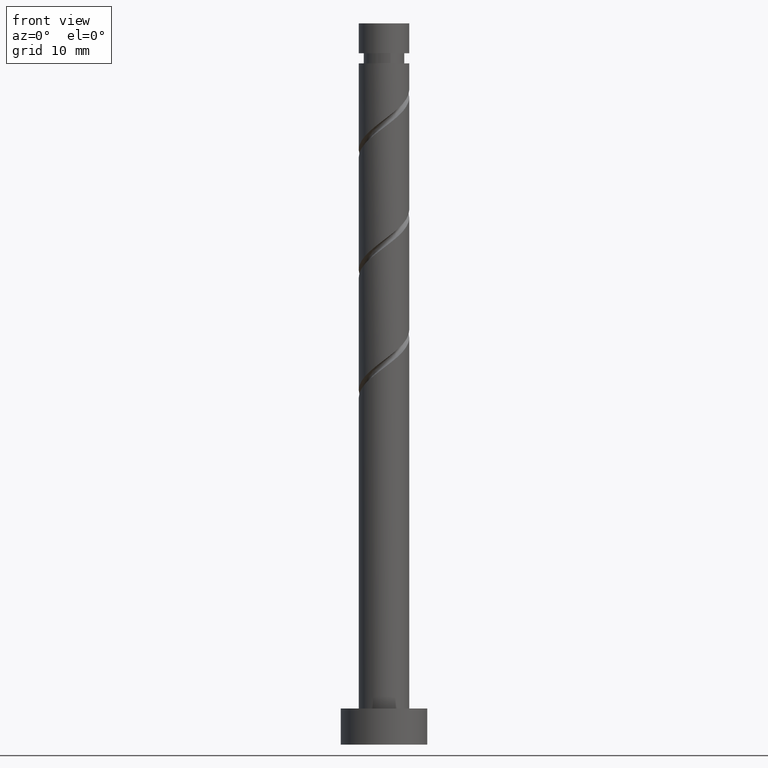
[diagram: clean part render]
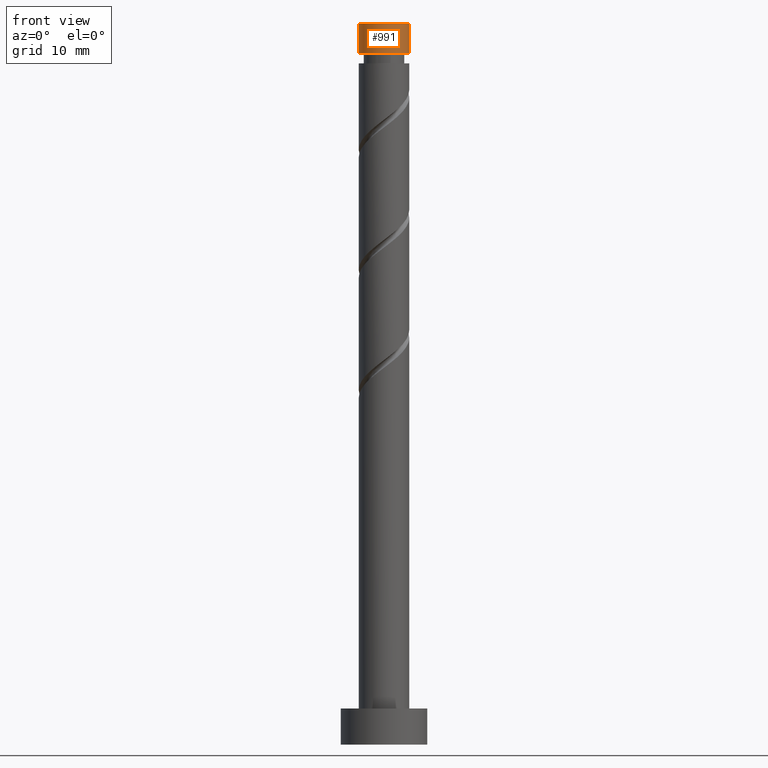
[diagram: same view with one face highlighted and labeled with its STEP entity id]
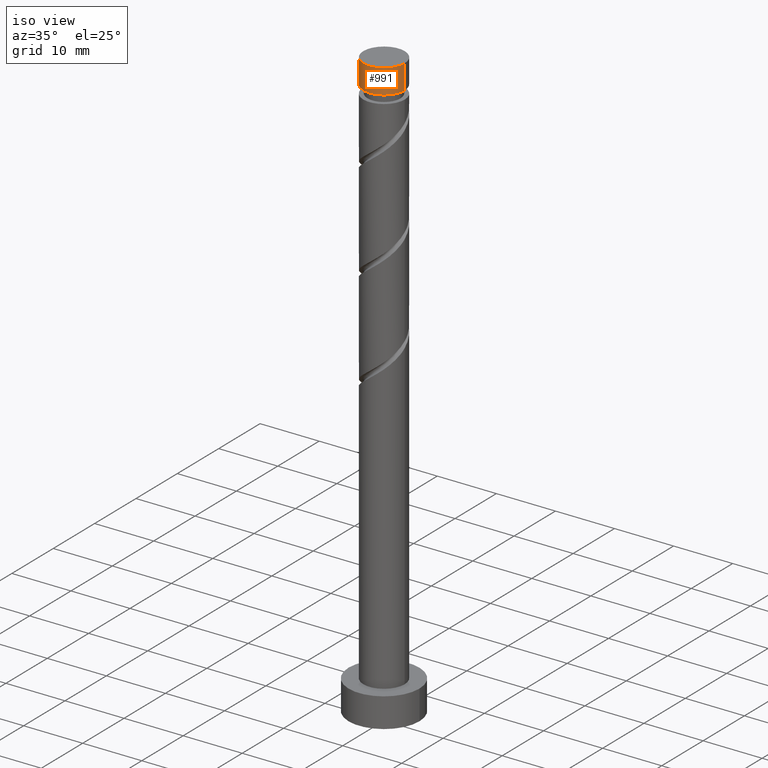
[diagram: same view with one face highlighted and labeled with its STEP entity id]
A machine part, front view. The second image highlights one B-rep face of the part: STEP entity #991.
A second angle (iso view) of the same face is appended — the face is thin or edge-on in the first view.
In plain terms, the highlighted cylindrical surface (edge-blend (fillet) strip) has radius 3.5 mm, axis along (-0, -0, -1).
Its self-contained STEP definition (entity closure, byte-faithful):
#3 = DIRECTION ( 'NONE',  ( 0.000000000000000000, 0.000000000000000000, 1.000000000000000000 ) ) ;
#42 = CIRCLE ( 'NONE', #822, 3.500000000000000000 ) ;
#119 = DIRECTION ( 'NONE',  ( -0.000000000000000000, -0.000000000000000000, -1.000000000000000000 ) ) ;
#138 = CIRCLE ( 'NONE', #972, 3.500000000000000444 ) ;
#144 = VERTEX_POINT ( 'NONE', #295 ) ;
#165 = ORIENTED_EDGE ( 'NONE', *, *, #1286, .F. ) ;
#218 = ORIENTED_EDGE ( 'NONE', *, *, #362, .F. ) ;
#295 = CARTESIAN_POINT ( 'NONE',  ( 3.500000000000000888, 4.286263797015737088E-16, 95.85397137275616330 ) ) ;
#305 = CARTESIAN_POINT ( 'NONE',  ( -3.500000000000000000, 0.000000000000000000, 100.0000000000000000 ) ) ;
#324 = LINE ( 'NONE', #1367, #533 ) ;
#334 = LINE ( 'NONE', #1017, #1155 ) ;
#348 = CARTESIAN_POINT ( 'NONE',  ( 0.000000000000000000, 0.000000000000000000, 100.0000000000000000 ) ) ;
#362 = EDGE_CURVE ( 'NONE', #1387, #589, #42, .T. ) ;
#370 = DIRECTION ( 'NONE',  ( -1.000000000000000000, 0.000000000000000000, 0.000000000000000000 ) ) ;
#380 = ORIENTED_EDGE ( 'NONE', *, *, #1023, .T. ) ;
#463 = DIRECTION ( 'NONE',  ( -0.000000000000000000, -0.000000000000000000, -1.000000000000000000 ) ) ;
#495 = VERTEX_POINT ( 'NONE', #688 ) ;
#533 = VECTOR ( 'NONE', #1471, 1000.000000000000000 ) ;
#589 = VERTEX_POINT ( 'NONE', #987 ) ;
#591 = CARTESIAN_POINT ( 'NONE',  ( 0.000000000000000000, 0.000000000000000000, 100.0000000000000000 ) ) ;
#651 = AXIS2_PLACEMENT_3D ( 'NONE', #591, #119, #1116 ) ;
#688 = CARTESIAN_POINT ( 'NONE',  ( -3.500000000000000444, 0.000000000000000000, 95.85397137275616330 ) ) ;
#785 = DIRECTION ( 'NONE',  ( 1.000000000000000000, 0.000000000000000000, 0.000000000000000000 ) ) ;
#822 = AXIS2_PLACEMENT_3D ( 'NONE', #348, #3, #785 ) ;
#852 = ORIENTED_EDGE ( 'NONE', *, *, #882, .F. ) ;
#882 = EDGE_CURVE ( 'NONE', #589, #144, #334, .T. ) ;
#914 = CARTESIAN_POINT ( 'NONE',  ( 0.000000000000000000, 0.000000000000000000, 95.85397137275616330 ) ) ;
#972 = AXIS2_PLACEMENT_3D ( 'NONE', #914, #1393, #370 ) ;
#987 = CARTESIAN_POINT ( 'NONE',  ( 3.500000000000000000, 4.286263797015736595E-16, 100.0000000000000000 ) ) ;
#991 = ADVANCED_FACE ( 'NONE', ( #1479 ), #1126, .T. ) ;
#1017 = CARTESIAN_POINT ( 'NONE',  ( 3.500000000000000000, 4.286263797015736595E-16, 100.0000000000000000 ) ) ;
#1023 = EDGE_CURVE ( 'NONE', #1387, #495, #324, .T. ) ;
#1116 = DIRECTION ( 'NONE',  ( -1.000000000000000000, 0.000000000000000000, 0.000000000000000000 ) ) ;
#1126 = CYLINDRICAL_SURFACE ( 'NONE', #651, 3.500000000000000000 ) ;
#1155 = VECTOR ( 'NONE', #463, 1000.000000000000000 ) ;
#1286 = EDGE_CURVE ( 'NONE', #144, #495, #138, .T. ) ;
#1367 = CARTESIAN_POINT ( 'NONE',  ( -3.500000000000000000, 0.000000000000000000, 100.0000000000000000 ) ) ;
#1387 = VERTEX_POINT ( 'NONE', #305 ) ;
#1393 = DIRECTION ( 'NONE',  ( -0.000000000000000000, -0.000000000000000000, -1.000000000000000000 ) ) ;
#1403 = EDGE_LOOP ( 'NONE', ( #852, #218, #380, #165 ) ) ;
#1471 = DIRECTION ( 'NONE',  ( -0.000000000000000000, -0.000000000000000000, -1.000000000000000000 ) ) ;
#1479 = FACE_OUTER_BOUND ( 'NONE', #1403, .T. ) ;